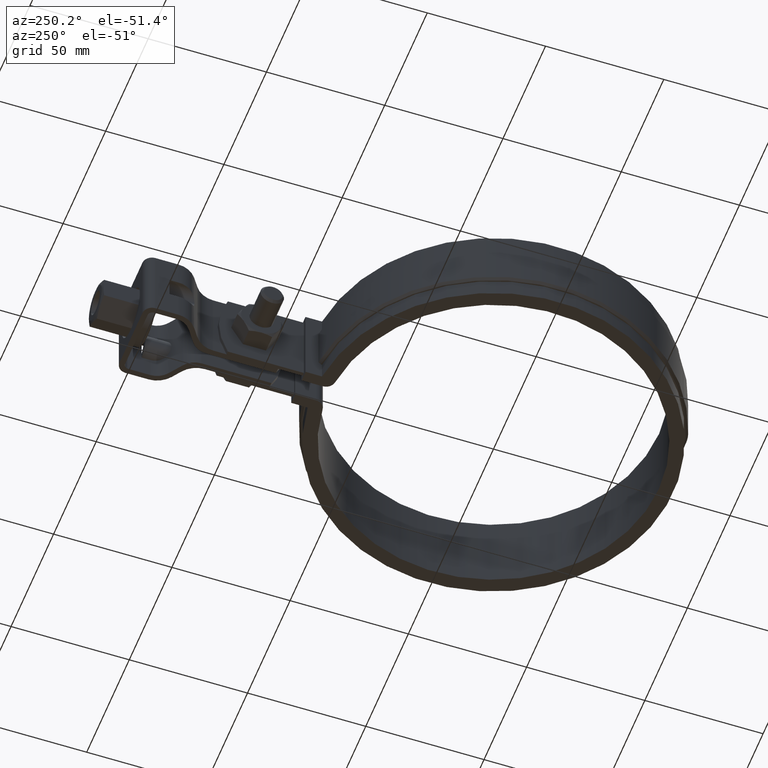
[diagram: clean part render]
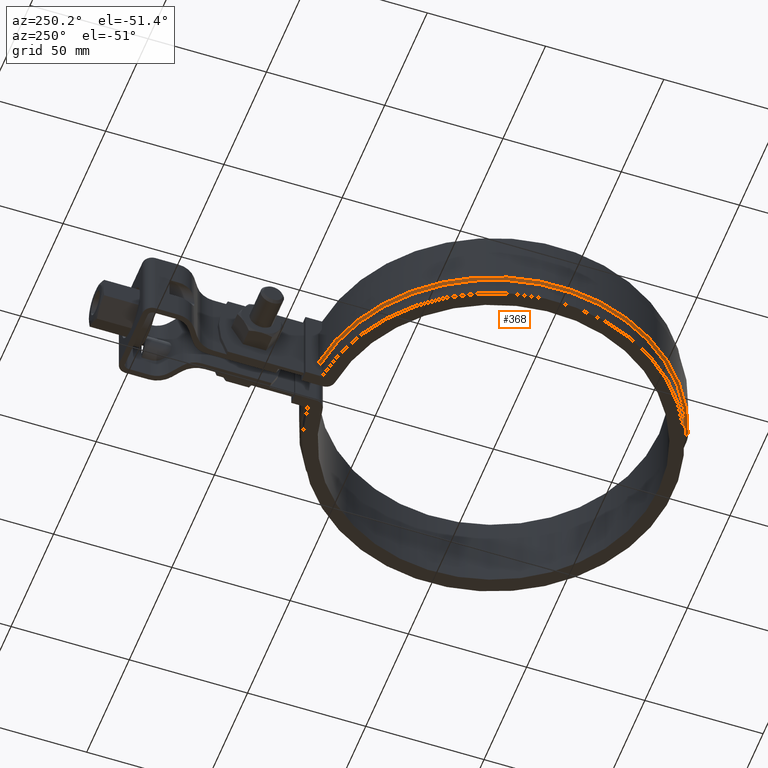
[diagram: same view with one face highlighted and labeled with its STEP entity id]
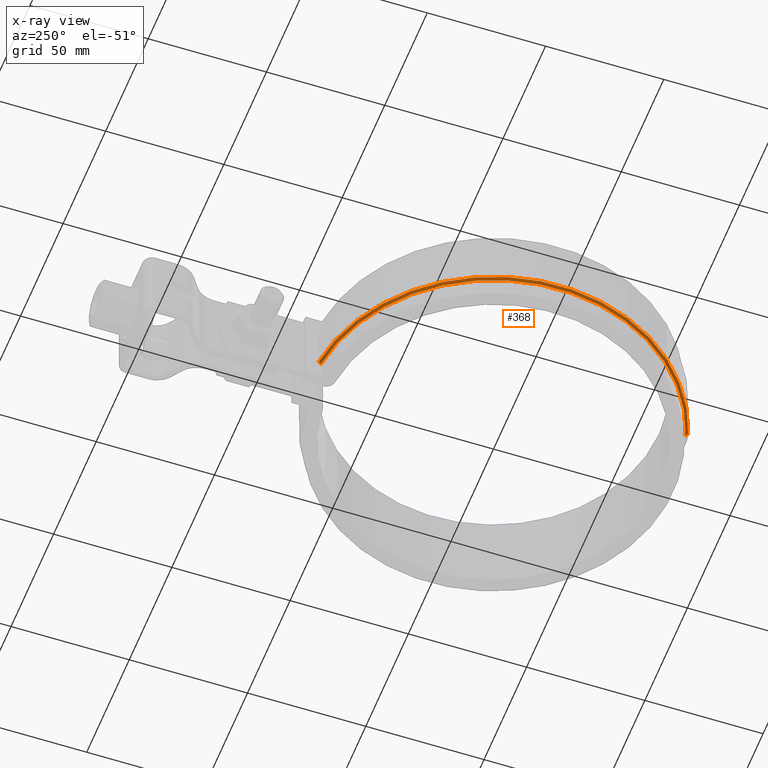
[diagram: x-ray of the same camera — body ghosted, the highlighted face saturated]
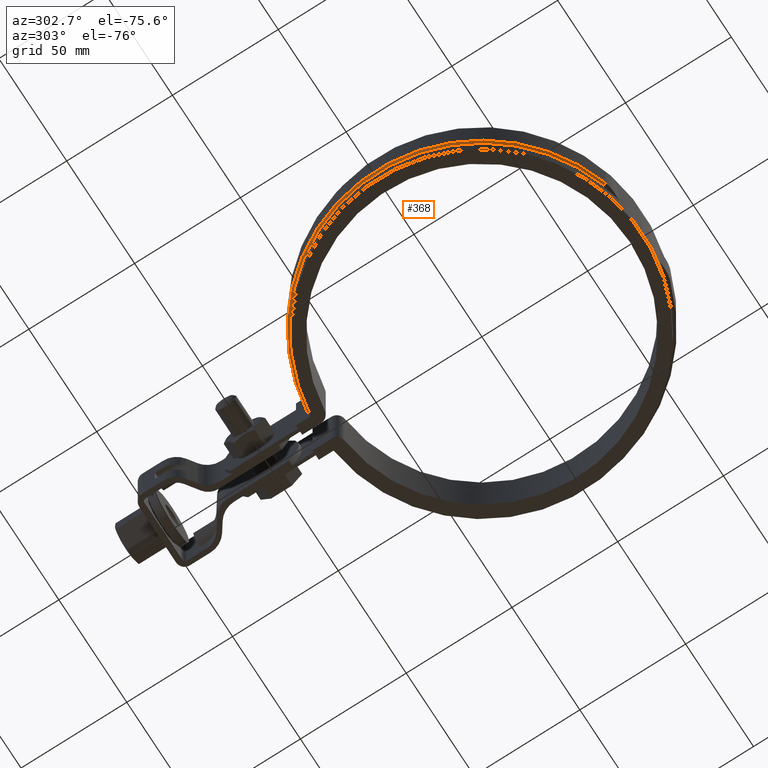
[diagram: same view with one face highlighted and labeled with its STEP entity id]
A machine part, auxiliary view. The second image highlights one B-rep face of the part: STEP entity #368.
The next image is the same camera in x-ray: the body ghosted, the highlighted face saturated — about 0% of this face is hidden behind the body in this view.
A second angle (auxiliary view) of the same face is appended — the face is thin or edge-on in the first view.
In plain terms, the highlighted conical surface has half-angle 45 deg.
Its self-contained STEP definition (entity closure, byte-faithful):
#368 = ADVANCED_FACE( '', ( #604 ), #605, .T. );
#604 = FACE_OUTER_BOUND( '', #1731, .T. );
#605 = CONICAL_SURFACE( '', #1732, 76.5000000000000, 0.785398163397441 );
#1731 = EDGE_LOOP( '', ( #3611, #3612, #3613, #3614 ) );
#1732 = AXIS2_PLACEMENT_3D( '', #3615, #3616, #3617 );
#3611 = ORIENTED_EDGE( '', *, *, #5180, .F. );
#3612 = ORIENTED_EDGE( '', *, *, #5181, .F. );
#3613 = ORIENTED_EDGE( '', *, *, #5179, .F. );
#3614 = ORIENTED_EDGE( '', *, *, #5153, .F. );
#3615 = CARTESIAN_POINT( '', ( 0.000000000000000, 0.000000000000000, -26.0000000000000 ) );
#3616 = DIRECTION( '', ( 0.000000000000000, 0.000000000000000, 1.00000000000000 ) );
#3617 = DIRECTION( '', ( 1.00000000000000, 0.000000000000000, 0.000000000000000 ) );
#5153 = EDGE_CURVE( '', #5786, #5784, #5788, .T. );
#5179 = EDGE_CURVE( '', #5784, #5825, #5831, .T. );
#5180 = EDGE_CURVE( '', #5832, #5786, #5833, .F. );
#5181 = EDGE_CURVE( '', #5825, #5832, #5834, .T. );
#5784 = VERTEX_POINT( '', #8433 );
#5786 = VERTEX_POINT( '', #8436 );
#5788 = CIRCLE( '', #8439, 77.5000000000000 );
#5825 = VERTEX_POINT( '', #8493 );
#5831 = LINE( '', #8504, #8505 );
#5832 = VERTEX_POINT( '', #8506 );
#5833 = B_SPLINE_CURVE_WITH_KNOTS( '', 3, ( #8507, #8508, #8509, #8510 ), .UNSPECIFIED., .F., .F., ( 4, 4 ), ( 706.997502694601, 706.998921160348 ), .UNSPECIFIED. );
#5834 = CIRCLE( '', #8511, 76.5000000000000 );
#8433 = CARTESIAN_POINT( '', ( -23.7225968224392, -73.7800000000000, -25.0000000000000 ) );
#8436 = CARTESIAN_POINT( '', ( -8.40000000000000, 77.0434293110061, -25.0000000000000 ) );
#8439 = AXIS2_PLACEMENT_3D( '', #9586, #9587, #9588 );
#8493 = CARTESIAN_POINT( '', ( -23.4164987989238, -72.8280000000000, -26.0000000000000 ) );
#8504 = CARTESIAN_POINT( '', ( -23.7225968224392, -73.7800000000000, -25.0000000000000 ) );
#8505 = VECTOR( '', #9628, 1000.00000000000 );
#8506 = CARTESIAN_POINT( '', ( -8.40000000000000, 76.0374249958532, -26.0000000000000 ) );
#8507 = CARTESIAN_POINT( '', ( -8.40000000000000, 77.0434293109787, -25.0000000000272 ) );
#8508 = CARTESIAN_POINT( '', ( -8.40000000000000, 76.7081074965679, -25.3333463549305 ) );
#8509 = CARTESIAN_POINT( '', ( -8.40000000000000, 76.3727728952687, -25.6666798594860 ) );
#8510 = CARTESIAN_POINT( '', ( -8.40000000000000, 76.0374249958887, -25.9999999999647 ) );
#8511 = AXIS2_PLACEMENT_3D( '', #9629, #9630, #9631 );
#9586 = CARTESIAN_POINT( '', ( 0.000000000000000, 0.000000000000000, -25.0000000000000 ) );
#9587 = DIRECTION( '', ( 0.000000000000000, 0.000000000000000, 1.00000000000000 ) );
#9588 = DIRECTION( '', ( 1.00000000000000, 0.000000000000000, 0.000000000000000 ) );
#9628 = DIRECTION( '', ( 0.216443988135502, 0.673165655689590, -0.707106781186549 ) );
#9629 = CARTESIAN_POINT( '', ( 0.000000000000000, 0.000000000000000, -26.0000000000000 ) );
#9630 = DIRECTION( '', ( 0.000000000000000, 0.000000000000000, -1.00000000000000 ) );
#9631 = DIRECTION( '', ( -1.00000000000000, 0.000000000000000, 0.000000000000000 ) );